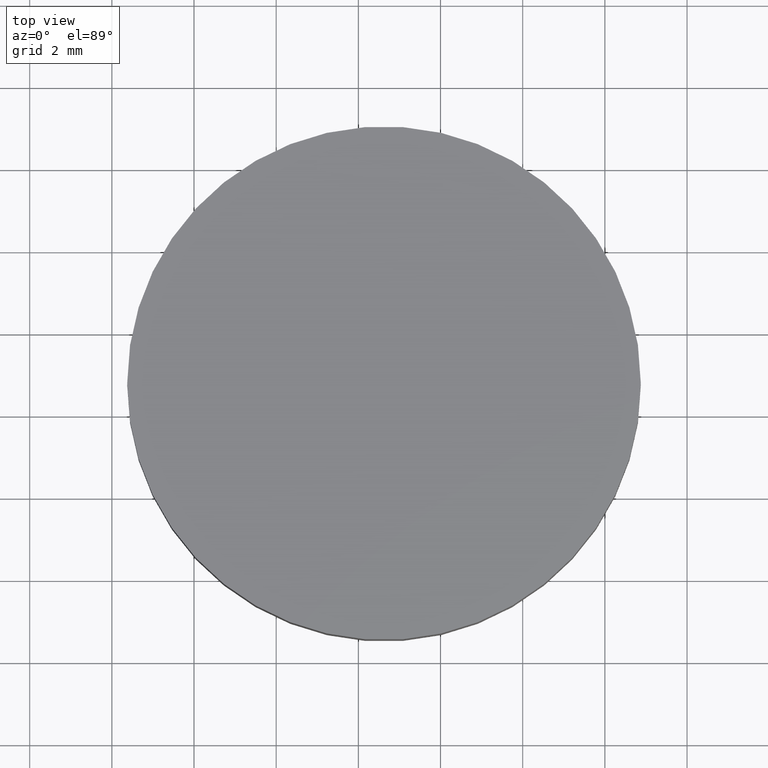
[diagram: clean part render]
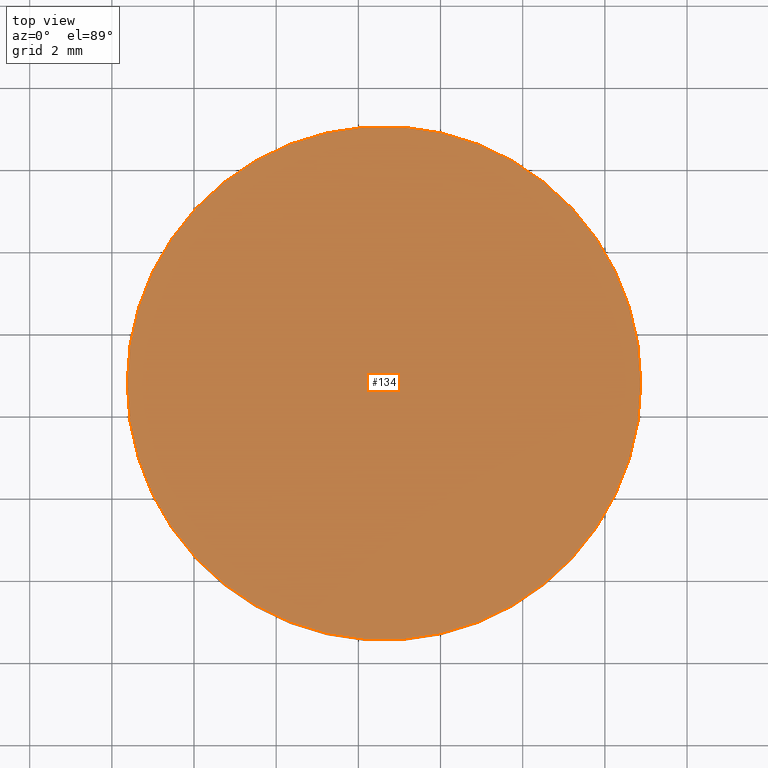
[diagram: same view with one face highlighted and labeled with its STEP entity id]
A machine part, top view. The second image highlights one B-rep face of the part: STEP entity #134.
In plain terms, the highlighted planar face has unit normal (0, 0, 1).
Its self-contained STEP definition (entity closure, byte-faithful):
#4 = CIRCLE ( 'NONE', #9, 6.249999999999998200 ) ;
#7 = PLANE ( 'NONE',  #120 ) ;
#8 = DIRECTION ( 'NONE',  ( 1.000000000000000000, 0.0000000000000000000, -0.0000000000000000000 ) ) ;
#9 = AXIS2_PLACEMENT_3D ( 'NONE', #124, #99, #48 ) ;
#27 = DIRECTION ( 'NONE',  ( 0.0000000000000000000, 0.0000000000000000000, 1.000000000000000000 ) ) ;
#42 = CIRCLE ( 'NONE', #130, 6.249999999999998200 ) ;
#48 = DIRECTION ( 'NONE',  ( 1.000000000000000000, 0.0000000000000000000, 0.0000000000000000000 ) ) ;
#54 = VERTEX_POINT ( 'NONE', #65 ) ;
#55 = CARTESIAN_POINT ( 'NONE',  ( 50.62396788794254100, 30.78162091726329700, 2.299999999999999800 ) ) ;
#58 = ORIENTED_EDGE ( 'NONE', *, *, #72, .T. ) ;
#60 = FACE_OUTER_BOUND ( 'NONE', #133, .T. ) ;
#65 = CARTESIAN_POINT ( 'NONE',  ( 44.37396788794254800, 30.78162091726329700, 2.299999999999999800 ) ) ;
#70 = DIRECTION ( 'NONE',  ( 1.000000000000000000, 0.0000000000000000000, 0.0000000000000000000 ) ) ;
#72 = EDGE_CURVE ( 'NONE', #54, #89, #4, .T. ) ;
#89 = VERTEX_POINT ( 'NONE', #126 ) ;
#90 = CARTESIAN_POINT ( 'NONE',  ( 50.62396788794254100, 30.78162091726329700, 2.299999999999999800 ) ) ;
#99 = DIRECTION ( 'NONE',  ( 0.0000000000000000000, 0.0000000000000000000, 1.000000000000000000 ) ) ;
#102 = DIRECTION ( 'NONE',  ( 0.0000000000000000000, 0.0000000000000000000, 1.000000000000000000 ) ) ;
#120 = AXIS2_PLACEMENT_3D ( 'NONE', #90, #27, #8 ) ;
#124 = CARTESIAN_POINT ( 'NONE',  ( 50.62396788794254100, 30.78162091726329700, 2.299999999999999800 ) ) ;
#126 = CARTESIAN_POINT ( 'NONE',  ( 56.87396788794254100, 30.78162091726329700, 2.299999999999999800 ) ) ;
#128 = ORIENTED_EDGE ( 'NONE', *, *, #138, .T. ) ;
#130 = AXIS2_PLACEMENT_3D ( 'NONE', #55, #102, #70 ) ;
#133 = EDGE_LOOP ( 'NONE', ( #58, #128 ) ) ;
#134 = ADVANCED_FACE ( 'NONE', ( #60 ), #7, .T. ) ;
#138 = EDGE_CURVE ( 'NONE', #89, #54, #42, .T. ) ;